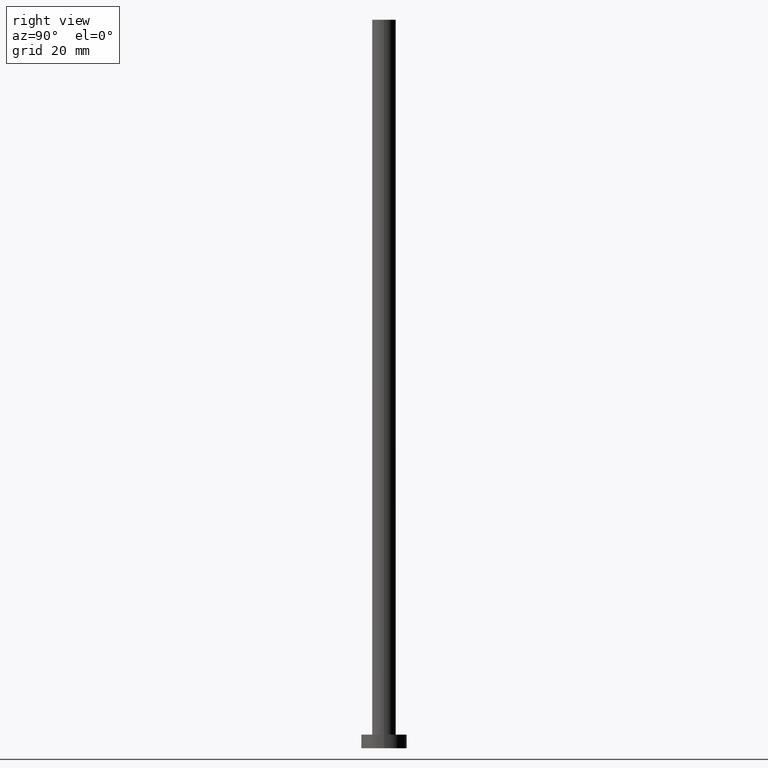
[diagram: clean part render]
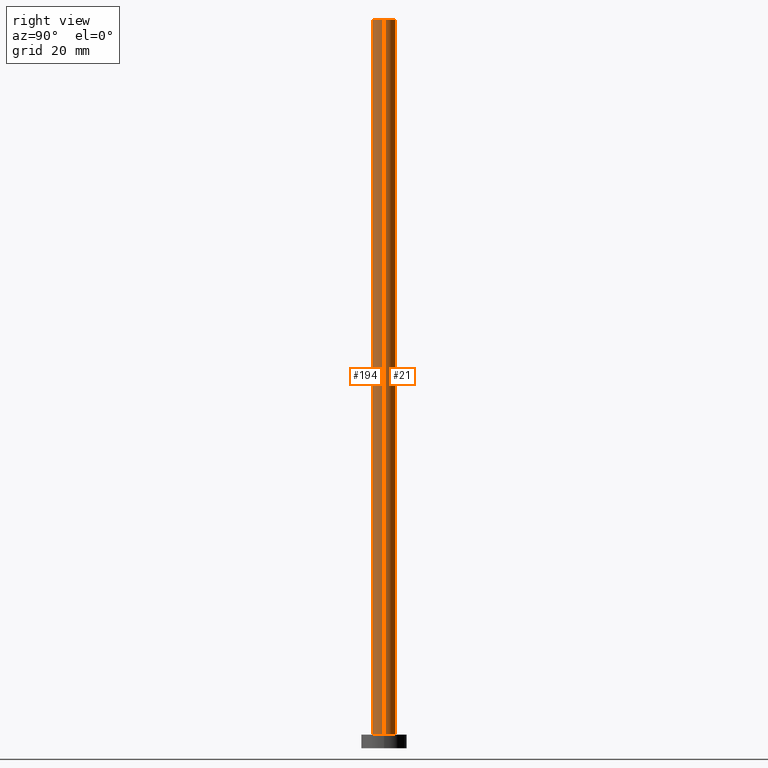
[diagram: same view with one multi-face feature highlighted, each face labeled with its STEP entity id]
A machine part, right view. The highlighted faces form ONE feature: a constant-radius fillet chain: 2 tangent blend faces with common blend radius 2.6 mm. The faces share edges in the B-rep.
Their STEP definitions:
[1] entity #194 (Cylinder):
#11 = AXIS2_PLACEMENT_3D ( 'NONE', #76, #141, #120 ) ;
#19 = VERTEX_POINT ( 'NONE', #23 ) ;
#22 = AXIS2_PLACEMENT_3D ( 'NONE', #246, #181, #233 ) ;
#23 = CARTESIAN_POINT ( 'NONE',  ( -2.600000000000000089, 0.000000000000000000, 160.0000000000000000 ) ) ;
#33 = EDGE_CURVE ( 'NONE', #19, #241, #67, .T. ) ;
#44 = DIRECTION ( 'NONE',  ( 1.000000000000000000, 0.000000000000000000, 0.000000000000000000 ) ) ;
#56 = DIRECTION ( 'NONE',  ( -0.000000000000000000, -0.000000000000000000, -1.000000000000000000 ) ) ;
#67 = LINE ( 'NONE', #134, #148 ) ;
#76 = CARTESIAN_POINT ( 'NONE',  ( 0.000000000000000000, 0.000000000000000000, 160.0000000000000000 ) ) ;
#79 = ORIENTED_EDGE ( 'NONE', *, *, #81, .T. ) ;
#80 = CYLINDRICAL_SURFACE ( 'NONE', #22, 2.600000000000000089 ) ;
#81 = EDGE_CURVE ( 'NONE', #241, #147, #251, .T. ) ;
#87 = CARTESIAN_POINT ( 'NONE',  ( 0.000000000000000000, 0.000000000000000000, 3.000000000000000000 ) ) ;
#97 = FACE_OUTER_BOUND ( 'NONE', #145, .T. ) ;
#120 = DIRECTION ( 'NONE',  ( 1.000000000000000000, 0.000000000000000000, 0.000000000000000000 ) ) ;
#134 = CARTESIAN_POINT ( 'NONE',  ( -2.600000000000000089, 0.000000000000000000, 160.0000000000000000 ) ) ;
#141 = DIRECTION ( 'NONE',  ( 0.000000000000000000, 0.000000000000000000, 1.000000000000000000 ) ) ;
#143 = VERTEX_POINT ( 'NONE', #173 ) ;
#145 = EDGE_LOOP ( 'NONE', ( #191, #164, #169, #79 ) ) ;
#147 = VERTEX_POINT ( 'NONE', #187 ) ;
#148 = VECTOR ( 'NONE', #152, 1000.000000000000000 ) ;
#152 = DIRECTION ( 'NONE',  ( -0.000000000000000000, -0.000000000000000000, -1.000000000000000000 ) ) ;
#155 = CARTESIAN_POINT ( 'NONE',  ( 2.600000000000000089, 3.184081677783118191E-16, 160.0000000000000000 ) ) ;
#164 = ORIENTED_EDGE ( 'NONE', *, *, #202, .F. ) ;
#168 = CARTESIAN_POINT ( 'NONE',  ( -2.600000000000000089, 0.000000000000000000, 3.000000000000000000 ) ) ;
#169 = ORIENTED_EDGE ( 'NONE', *, *, #33, .T. ) ;
#172 = EDGE_CURVE ( 'NONE', #143, #147, #184, .T. ) ;
#173 = CARTESIAN_POINT ( 'NONE',  ( 2.600000000000000089, 3.184081677783118191E-16, 160.0000000000000000 ) ) ;
#181 = DIRECTION ( 'NONE',  ( -0.000000000000000000, -0.000000000000000000, -1.000000000000000000 ) ) ;
#184 = LINE ( 'NONE', #155, #197 ) ;
#187 = CARTESIAN_POINT ( 'NONE',  ( 2.600000000000000089, 3.184081677783118191E-16, 3.000000000000000000 ) ) ;
#189 = CIRCLE ( 'NONE', #11, 2.600000000000000089 ) ;
#191 = ORIENTED_EDGE ( 'NONE', *, *, #172, .F. ) ;
#194 = ADVANCED_FACE ( 'NONE', ( #97 ), #80, .T. ) ;
#197 = VECTOR ( 'NONE', #56, 1000.000000000000000 ) ;
#202 = EDGE_CURVE ( 'NONE', #19, #143, #189, .T. ) ;
#216 = AXIS2_PLACEMENT_3D ( 'NONE', #87, #249, #44 ) ;
#233 = DIRECTION ( 'NONE',  ( -1.000000000000000000, 0.000000000000000000, 0.000000000000000000 ) ) ;
#241 = VERTEX_POINT ( 'NONE', #168 ) ;
#246 = CARTESIAN_POINT ( 'NONE',  ( 0.000000000000000000, 0.000000000000000000, 160.0000000000000000 ) ) ;
#249 = DIRECTION ( 'NONE',  ( 0.000000000000000000, 0.000000000000000000, 1.000000000000000000 ) ) ;
#251 = CIRCLE ( 'NONE', #216, 2.600000000000000089 ) ;
[2] entity #21 (Cylinder):
#14 = EDGE_CURVE ( 'NONE', #143, #19, #133, .T. ) ;
#17 = AXIS2_PLACEMENT_3D ( 'NONE', #28, #228, #213 ) ;
#19 = VERTEX_POINT ( 'NONE', #23 ) ;
#21 = ADVANCED_FACE ( 'NONE', ( #70 ), #248, .T. ) ;
#23 = CARTESIAN_POINT ( 'NONE',  ( -2.600000000000000089, 0.000000000000000000, 160.0000000000000000 ) ) ;
#28 = CARTESIAN_POINT ( 'NONE',  ( 0.000000000000000000, 0.000000000000000000, 160.0000000000000000 ) ) ;
#30 = AXIS2_PLACEMENT_3D ( 'NONE', #207, #105, #234 ) ;
#33 = EDGE_CURVE ( 'NONE', #19, #241, #67, .T. ) ;
#53 = ORIENTED_EDGE ( 'NONE', *, *, #172, .T. ) ;
#56 = DIRECTION ( 'NONE',  ( -0.000000000000000000, -0.000000000000000000, -1.000000000000000000 ) ) ;
#59 = DIRECTION ( 'NONE',  ( 1.000000000000000000, 0.000000000000000000, 0.000000000000000000 ) ) ;
#60 = ORIENTED_EDGE ( 'NONE', *, *, #229, .T. ) ;
#67 = LINE ( 'NONE', #134, #148 ) ;
#70 = FACE_OUTER_BOUND ( 'NONE', #131, .T. ) ;
#75 = CIRCLE ( 'NONE', #96, 2.600000000000000089 ) ;
#96 = AXIS2_PLACEMENT_3D ( 'NONE', #225, #123, #59 ) ;
#105 = DIRECTION ( 'NONE',  ( -0.000000000000000000, -0.000000000000000000, -1.000000000000000000 ) ) ;
#123 = DIRECTION ( 'NONE',  ( 0.000000000000000000, 0.000000000000000000, 1.000000000000000000 ) ) ;
#131 = EDGE_LOOP ( 'NONE', ( #245, #53, #60, #206 ) ) ;
#133 = CIRCLE ( 'NONE', #17, 2.600000000000000089 ) ;
#134 = CARTESIAN_POINT ( 'NONE',  ( -2.600000000000000089, 0.000000000000000000, 160.0000000000000000 ) ) ;
#143 = VERTEX_POINT ( 'NONE', #173 ) ;
#147 = VERTEX_POINT ( 'NONE', #187 ) ;
#148 = VECTOR ( 'NONE', #152, 1000.000000000000000 ) ;
#152 = DIRECTION ( 'NONE',  ( -0.000000000000000000, -0.000000000000000000, -1.000000000000000000 ) ) ;
#155 = CARTESIAN_POINT ( 'NONE',  ( 2.600000000000000089, 3.184081677783118191E-16, 160.0000000000000000 ) ) ;
#168 = CARTESIAN_POINT ( 'NONE',  ( -2.600000000000000089, 0.000000000000000000, 3.000000000000000000 ) ) ;
#172 = EDGE_CURVE ( 'NONE', #143, #147, #184, .T. ) ;
#173 = CARTESIAN_POINT ( 'NONE',  ( 2.600000000000000089, 3.184081677783118191E-16, 160.0000000000000000 ) ) ;
#184 = LINE ( 'NONE', #155, #197 ) ;
#187 = CARTESIAN_POINT ( 'NONE',  ( 2.600000000000000089, 3.184081677783118191E-16, 3.000000000000000000 ) ) ;
#197 = VECTOR ( 'NONE', #56, 1000.000000000000000 ) ;
#206 = ORIENTED_EDGE ( 'NONE', *, *, #33, .F. ) ;
#207 = CARTESIAN_POINT ( 'NONE',  ( 0.000000000000000000, 0.000000000000000000, 160.0000000000000000 ) ) ;
#213 = DIRECTION ( 'NONE',  ( 1.000000000000000000, 0.000000000000000000, 0.000000000000000000 ) ) ;
#225 = CARTESIAN_POINT ( 'NONE',  ( 0.000000000000000000, 0.000000000000000000, 3.000000000000000000 ) ) ;
#228 = DIRECTION ( 'NONE',  ( 0.000000000000000000, 0.000000000000000000, 1.000000000000000000 ) ) ;
#229 = EDGE_CURVE ( 'NONE', #147, #241, #75, .T. ) ;
#234 = DIRECTION ( 'NONE',  ( -1.000000000000000000, 0.000000000000000000, 0.000000000000000000 ) ) ;
#241 = VERTEX_POINT ( 'NONE', #168 ) ;
#245 = ORIENTED_EDGE ( 'NONE', *, *, #14, .F. ) ;
#248 = CYLINDRICAL_SURFACE ( 'NONE', #30, 2.600000000000000089 ) ;